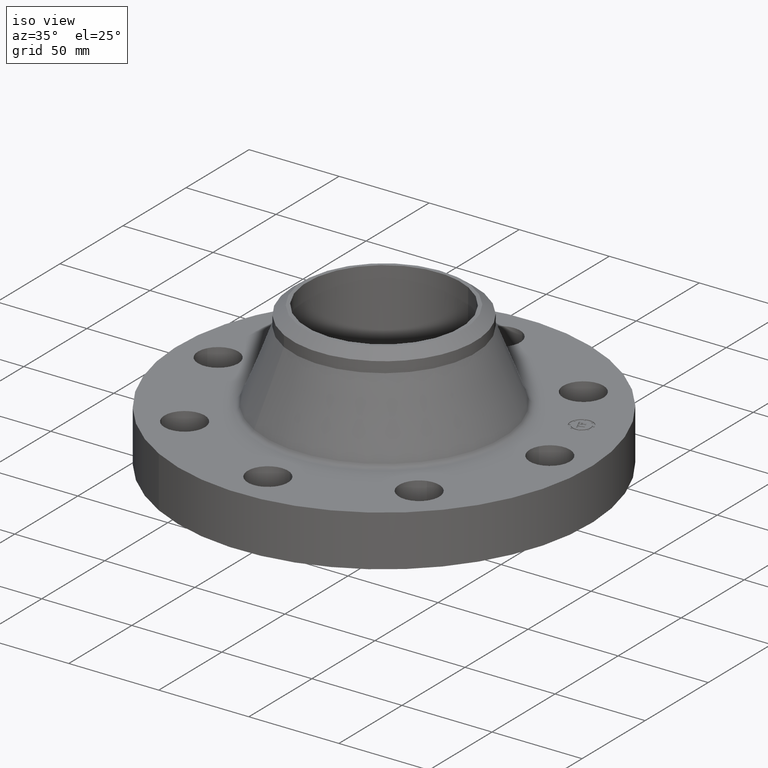
[diagram: clean part render]
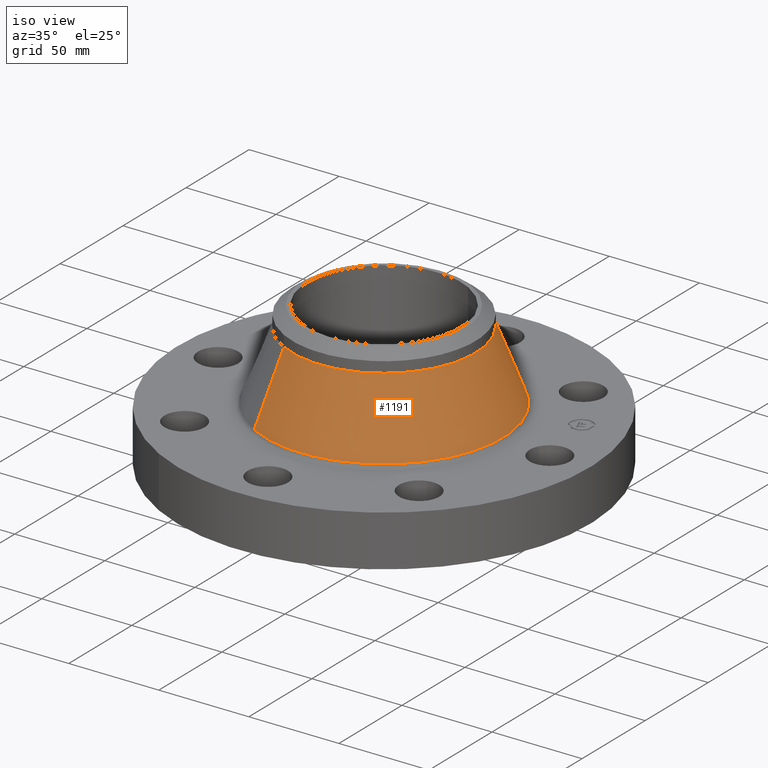
[diagram: same view with one face highlighted and labeled with its STEP entity id]
A machine part, iso view. The second image highlights one B-rep face of the part: STEP entity #1191.
In plain terms, the highlighted conical surface has half-angle 21.457 deg.
Its self-contained STEP definition (entity closure, byte-faithful):
#971=AXIS2_PLACEMENT_3D('Circle Axis2P3D',#969,#970,$) ;
#1178=AXIS2_PLACEMENT_3D('Cone Axis2P3D',#1175,#1176,#1177) ;
#1182=AXIS2_PLACEMENT_3D('Circle Axis2P3D',#1180,#1181,$) ;
#935=CARTESIAN_POINT('Vertex',(-1.24415158825,-2.27740420624,1.19610450375)) ;
#942=CARTESIAN_POINT('Vertex',(1.24415158825,2.27740420624,1.19610450375)) ;
#969=CARTESIAN_POINT('Axis2P3D Location',(0.,0.,1.19610450375)) ;
#1142=CARTESIAN_POINT('Line Origine',(-1.10150133273,-2.01628466502,1.95314674851)) ;
#1146=CARTESIAN_POINT('Vertex',(-0.958851077212,-1.75516512379,2.71018899327)) ;
#1153=CARTESIAN_POINT('Vertex',(0.958851077214,1.75516512379,2.71018899327)) ;
#1156=CARTESIAN_POINT('Line Origine',(1.10150133273,2.01628466502,1.95314674851)) ;
#1175=CARTESIAN_POINT('Axis2P3D Location',(0.,0.,2.71018899327)) ;
#1180=CARTESIAN_POINT('Axis2P3D Location',(0.,0.,2.71018899327)) ;
#970=DIRECTION('Axis2P3D Direction',(-0.,0.,-0.0393700787402)) ;
#1143=DIRECTION('Vector Direction',(-0.00690440352171,-0.0126384258722,-0.0366415406811)) ;
#1157=DIRECTION('Vector Direction',(0.00690440352171,0.0126384258722,-0.0366415406811)) ;
#1176=DIRECTION('Axis2P3D Direction',(0.,0.,-0.0393700787402)) ;
#1177=DIRECTION('Axis2P3D XDirection',(0.0188750212049,0.0345504945626,0.)) ;
#1181=DIRECTION('Axis2P3D Direction',(-0.,0.,-0.0393700787402)) ;
#1144=VECTOR('Line Direction',#1143,0.0393700787402) ;
#1158=VECTOR('Line Direction',#1157,0.0393700787402) ;
#1186=ORIENTED_EDGE('',*,*,#973,.F.) ;
#1187=ORIENTED_EDGE('',*,*,#1160,.T.) ;
#1188=ORIENTED_EDGE('',*,*,#1184,.T.) ;
#1189=ORIENTED_EDGE('',*,*,#1148,.F.) ;
#1191=ADVANCED_FACE('PartBody',(#1190),#1179,.T.) ;
#972=CIRCLE('generated circle',#971,2.59508826307) ;
#1183=CIRCLE('generated circle',#1182,2.00000000001) ;
#1179=CONICAL_SURFACE('Cone',#1178,2.00000000001,0.374487721633) ;
#973=EDGE_CURVE('',#943,#936,#972,.T.) ;
#1148=EDGE_CURVE('',#936,#1147,#1145,.F.) ;
#1160=EDGE_CURVE('',#943,#1154,#1159,.F.) ;
#1184=EDGE_CURVE('',#1154,#1147,#1183,.T.) ;
#1185=EDGE_LOOP('',(#1186,#1187,#1188,#1189)) ;
#1190=FACE_OUTER_BOUND('',#1185,.T.) ;
#1145=LINE('Line',#1142,#1144) ;
#1159=LINE('Line',#1156,#1158) ;
#936=VERTEX_POINT('',#935) ;
#943=VERTEX_POINT('',#942) ;
#1147=VERTEX_POINT('',#1146) ;
#1154=VERTEX_POINT('',#1153) ;